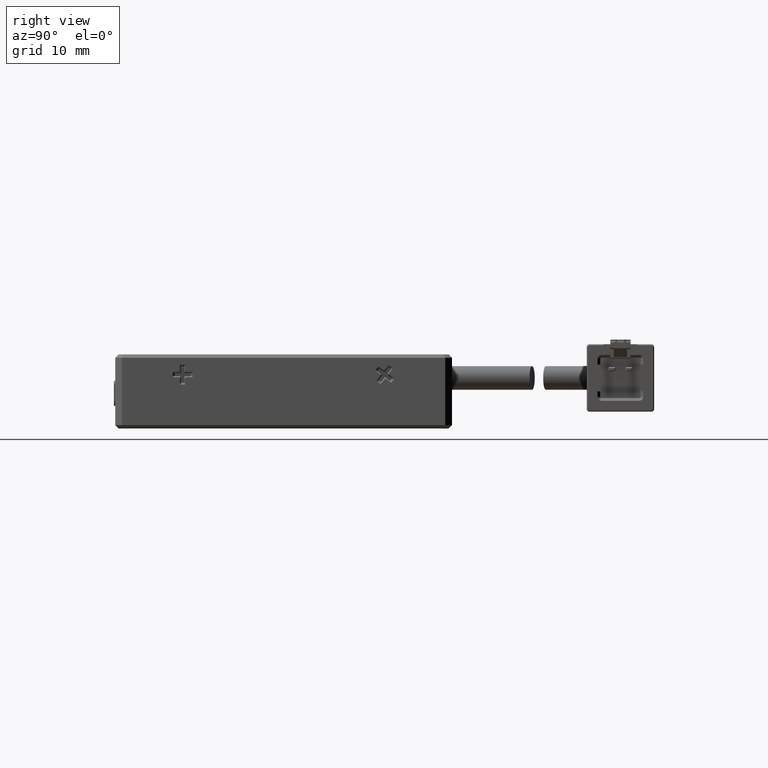
[diagram: clean part render]
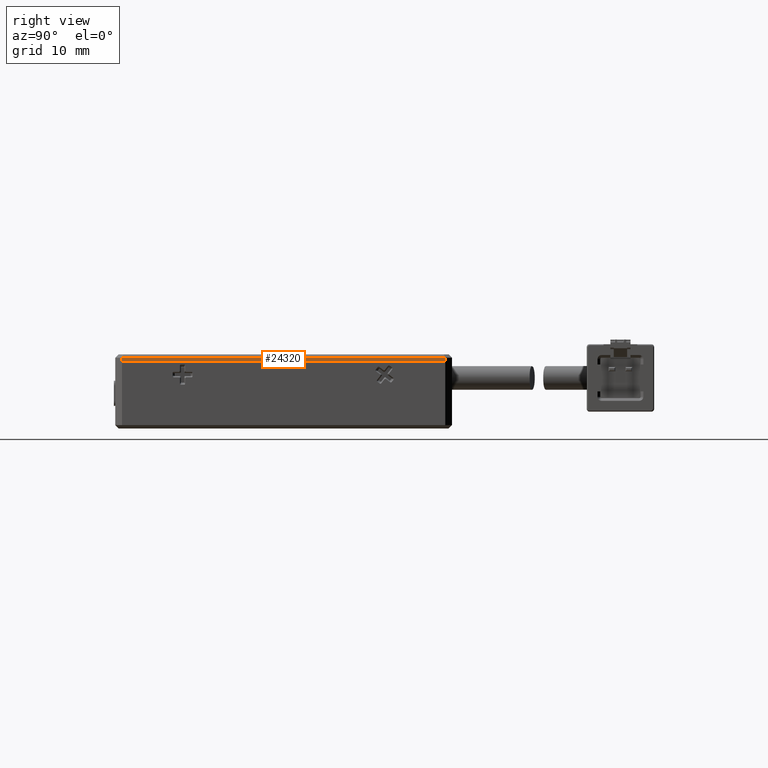
[diagram: same view with one face highlighted and labeled with its STEP entity id]
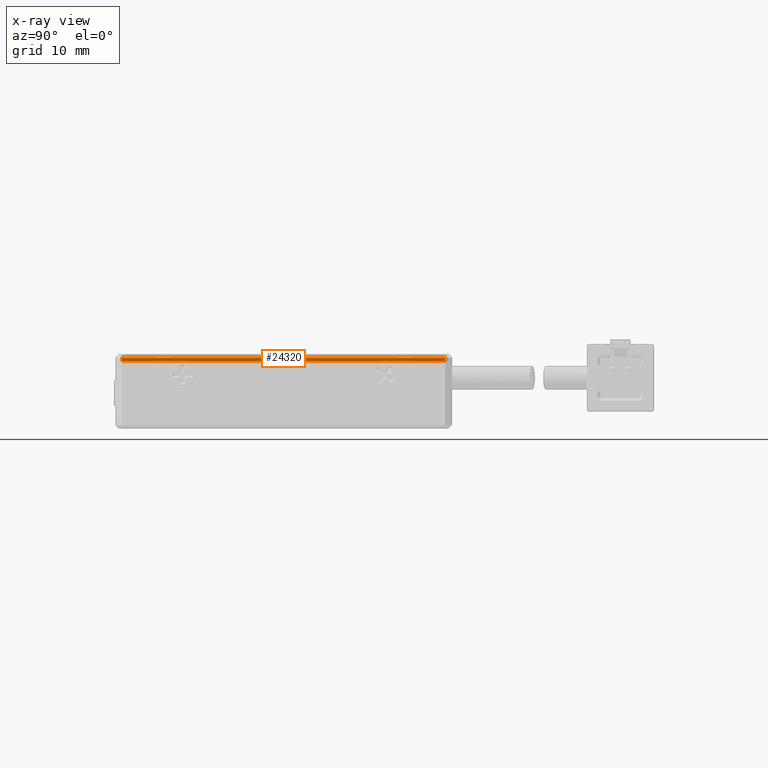
[diagram: x-ray of the same camera — body ghosted, the highlighted face saturated]
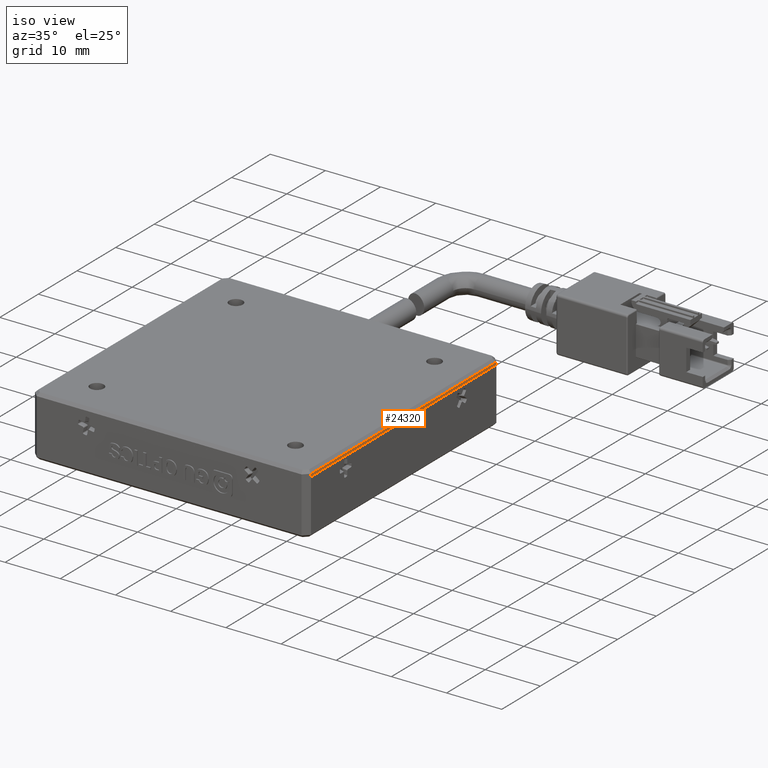
[diagram: same view with one face highlighted and labeled with its STEP entity id]
A machine part, right view. The second image highlights one B-rep face of the part: STEP entity #24320.
The next image is the same camera in x-ray: the body ghosted, the highlighted face saturated — about 0% of this face is hidden behind the body in this view.
A second angle (iso view) of the same face is appended — the face is thin or edge-on in the first view.
In plain terms, the highlighted planar face has unit normal (-1, 0, 0).
Its self-contained STEP definition (entity closure, byte-faithful):
#1103 = PLANE ( 'NONE',  #4466 ) ;
#3362 = FACE_OUTER_BOUND ( 'NONE', #16934, .T. ) ;
#4466 = AXIS2_PLACEMENT_3D ( 'NONE', #14201, #36885, #17491 ) ;
#4887 = VECTOR ( 'NONE', #13887, 1000.000000000000000 ) ;
#8031 = DIRECTION ( 'NONE',  ( -0.0000000000000000000, -1.000000000000000000, -0.0000000000000000000 ) ) ;
#9210 = CARTESIAN_POINT ( 'NONE',  ( 44.26702531645572200, 38.21113924050630600, 1.249999999999998900 ) ) ;
#13446 = CARTESIAN_POINT ( 'NONE',  ( 44.26702531645572200, 38.21113924050631300, 2.250000000000000900 ) ) ;
#13539 = LINE ( 'NONE', #17175, #4887 ) ;
#13853 = EDGE_CURVE ( 'NONE', #33594, #38938, #13539, .T. ) ;
#13887 = DIRECTION ( 'NONE',  ( -0.0000000000000000000, -1.000000000000000000, 0.0000000000000000000 ) ) ;
#14174 = ORIENTED_EDGE ( 'NONE', *, *, #20412, .T. ) ;
#14201 = CARTESIAN_POINT ( 'NONE',  ( 44.26702531645572200, -10.78886075949366800, 2.250000000000000900 ) ) ;
#14445 = CARTESIAN_POINT ( 'NONE',  ( 44.26702531645572200, 38.21113924050631300, 1.749999999999978500 ) ) ;
#16730 = DIRECTION ( 'NONE',  ( -0.0000000000000000000, -0.0000000000000000000, -1.000000000000000000 ) ) ;
#16930 = CARTESIAN_POINT ( 'NONE',  ( 44.26702531645572200, -9.788860759493649900, 1.749999999999978500 ) ) ;
#16934 = EDGE_LOOP ( 'NONE', ( #14174, #20872, #35082, #30550 ) ) ;
#17175 = CARTESIAN_POINT ( 'NONE',  ( 44.26702531645572200, -10.78886075949366800, 1.249999999999999300 ) ) ;
#17491 = DIRECTION ( 'NONE',  ( 0.0000000000000000000, 0.0000000000000000000, 1.000000000000000000 ) ) ;
#18343 = VECTOR ( 'NONE', #23654, 1000.000000000000000 ) ;
#18804 = VERTEX_POINT ( 'NONE', #14445 ) ;
#19768 = VERTEX_POINT ( 'NONE', #16930 ) ;
#20383 = CARTESIAN_POINT ( 'NONE',  ( 44.26702531645572200, -9.788860759493653400, 2.250000000000000900 ) ) ;
#20412 = EDGE_CURVE ( 'NONE', #18804, #19768, #35790, .T. ) ;
#20872 = ORIENTED_EDGE ( 'NONE', *, *, #32002, .T. ) ;
#23654 = DIRECTION ( 'NONE',  ( -0.0000000000000000000, -0.0000000000000000000, -1.000000000000000000 ) ) ;
#24320 = ADVANCED_FACE ( 'NONE', ( #3362 ), #1103, .F. ) ;
#24462 = LINE ( 'NONE', #13446, #39622 ) ;
#24542 = CARTESIAN_POINT ( 'NONE',  ( 44.26702531645571500, -9.788860759493653400, 1.249999999999998900 ) ) ;
#25948 = EDGE_CURVE ( 'NONE', #18804, #33594, #24462, .T. ) ;
#26972 = LINE ( 'NONE', #20383, #18343 ) ;
#30550 = ORIENTED_EDGE ( 'NONE', *, *, #25948, .F. ) ;
#32002 = EDGE_CURVE ( 'NONE', #19768, #38938, #26972, .T. ) ;
#32744 = VECTOR ( 'NONE', #8031, 1000.000000000000000 ) ;
#33594 = VERTEX_POINT ( 'NONE', #9210 ) ;
#35082 = ORIENTED_EDGE ( 'NONE', *, *, #13853, .F. ) ;
#35790 = LINE ( 'NONE', #40371, #32744 ) ;
#36885 = DIRECTION ( 'NONE',  ( -1.000000000000000000, 0.0000000000000000000, 0.0000000000000000000 ) ) ;
#38938 = VERTEX_POINT ( 'NONE', #24542 ) ;
#39622 = VECTOR ( 'NONE', #16730, 1000.000000000000000 ) ;
#40371 = CARTESIAN_POINT ( 'NONE',  ( 44.26702531645572200, 14.21113924050633600, 1.749999999999978500 ) ) ;